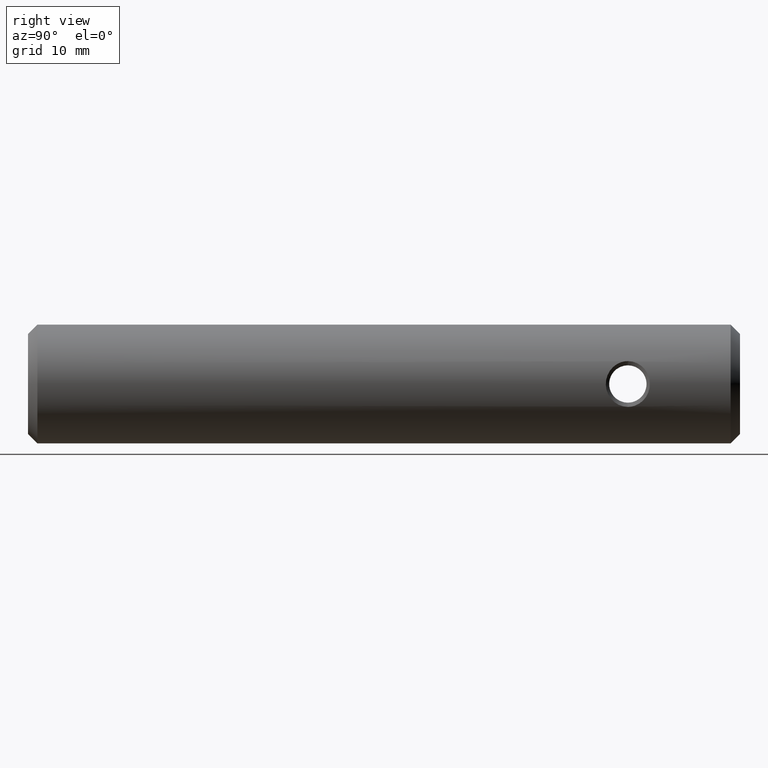
[diagram: clean part render]
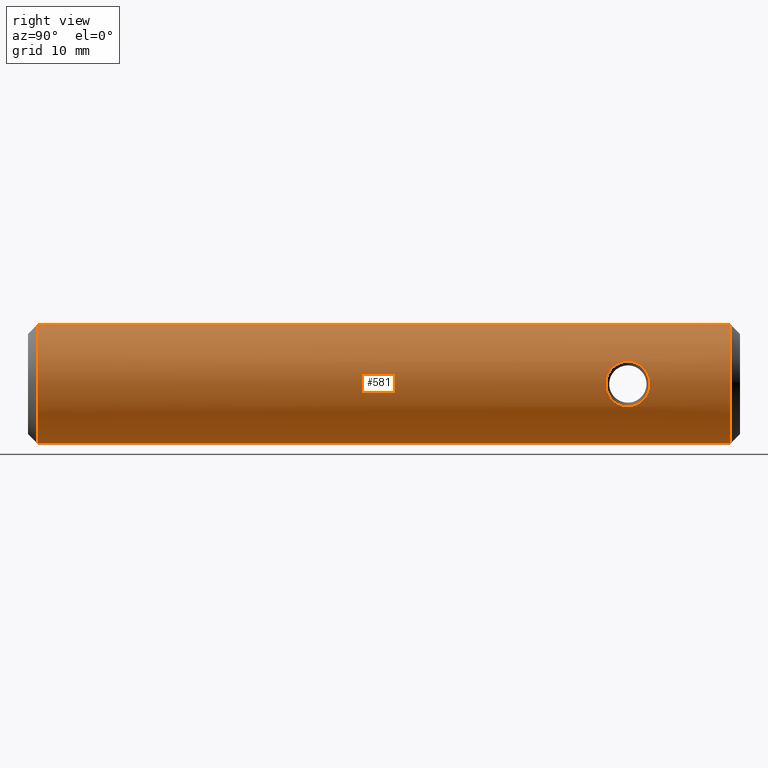
[diagram: same view with one face highlighted and labeled with its STEP entity id]
A machine part, right view. The second image highlights one B-rep face of the part: STEP entity #581.
In plain terms, the highlighted cylindrical surface (partial cylindrical patch) has radius 6.35 mm, axis along (-0, -1, -0).
Its self-contained STEP definition (entity closure, byte-faithful):
#2 = CARTESIAN_POINT ( 'NONE',  ( 6.326067732639769400, 66.49591761401511300, -0.5564110071997028200 ) ) ;
#14 = ORIENTED_EDGE ( 'NONE', *, *, #534, .T. ) ;
#17 = CARTESIAN_POINT ( 'NONE',  ( 6.044716325919997000, 62.76065860327219100, -1.947430056315983400 ) ) ;
#19 = CARTESIAN_POINT ( 'NONE',  ( 6.290881142674536800, 61.99714789250209900, 0.8678305087257779400 ) ) ;
#22 = AXIS2_PLACEMENT_3D ( 'NONE', #664, #599, #43 ) ;
#23 = CARTESIAN_POINT ( 'NONE',  ( 6.343903829851148800, 61.85868954769866700, 0.3198822842366769700 ) ) ;
#24 = CARTESIAN_POINT ( 'NONE',  ( 7.776507174585692200E-016, -4.972576832151299100, 6.349999999999999600 ) ) ;
#31 = CARTESIAN_POINT ( 'NONE',  ( 6.325273182238317000, 61.90436055669693600, -0.6387770456071684100 ) ) ;
#39 = VERTEX_POINT ( 'NONE', #304 ) ;
#43 = DIRECTION ( 'NONE',  ( 0.0000000000000000000, 0.0000000000000000000, -1.000000000000000000 ) ) ;
#61 = VERTEX_POINT ( 'NONE', #383 ) ;
#63 = CARTESIAN_POINT ( 'NONE',  ( 6.172050388588122200, 66.07067697859237400, 1.498839418548104200 ) ) ;
#65 = CARTESIAN_POINT ( 'NONE',  ( 6.230175866344139600, 66.23974002935835900, 1.235165687787453900 ) ) ;
#67 = CARTESIAN_POINT ( 'NONE',  ( 5.984937469672895600, 65.38463920628757400, 2.124049414043475400 ) ) ;
#78 = LINE ( 'NONE', #24, #321 ) ;
#90 = CARTESIAN_POINT ( 'NONE',  ( 6.044138595771001700, 62.76241963860174200, 1.949212999774067500 ) ) ;
#99 = CARTESIAN_POINT ( 'NONE',  ( 6.230315695396682500, 62.15913759906042200, -1.234435924944128800 ) ) ;
#109 = FACE_BOUND ( 'NONE', #409, .T. ) ;
#120 = CIRCLE ( 'NONE', #991, 6.349999999999999600 ) ;
#151 = CARTESIAN_POINT ( 'NONE',  ( 6.044502638549860600, 65.63846607084785500, -1.948086060091246900 ) ) ;
#154 = CARTESIAN_POINT ( 'NONE',  ( 6.076465001697525500, 65.75696497871148000, 1.847401799589166100 ) ) ;
#167 = CARTESIAN_POINT ( 'NONE',  ( 5.857736303906841100, 64.04578168331703100, -2.451412938292524900 ) ) ;
#172 = CARTESIAN_POINT ( 'NONE',  ( 5.910974152097070400, 63.44189568427005800, -2.320247162970356000 ) ) ;
#186 = CARTESIAN_POINT ( 'NONE',  ( 5.857731802697410100, 64.19979653972927700, 2.451423694033194200 ) ) ;
#200 = B_SPLINE_CURVE_WITH_KNOTS ( 'NONE', 3,
 ( #692, #167, #475, #775, #326, #172, #494, #233, #311, #17, #568, #949, #961, #99, #513, #31, #657, #436, #23, #591, #649, #498, #19, #729, #878, #265, #90, #797, #430, #574, #726, #273, #341, #186 ),
 .UNSPECIFIED., .F., .F.,
 ( 4, 2, 2, 2, 2, 2, 2, 2, 2, 2, 2, 2, 2, 2, 2, 2, 4 ),
 ( 0.0000000000000000000, 0.03124999999999994400, 0.04687499999999991000, 0.06249999999999987500, 0.09374999999999983300, 0.1249999999999997800, 0.1562500000000006700, 0.1875000000000015500, 0.2500000000000027800, 0.2812500000000033900, 0.2968750000000036600, 0.3125000000000040000, 0.3750000000000057200, 0.4062500000000065500, 0.4218750000000058300, 0.4375000000000051600, 0.5000000000000000000 ),
 .UNSPECIFIED. ) ;
#217 = DIRECTION ( 'NONE',  ( 0.0000000000000000000, 0.0000000000000000000, -1.000000000000000000 ) ) ;
#231 = CARTESIAN_POINT ( 'NONE',  ( 5.910710731190838500, 64.95678743270613600, 2.320917073869206400 ) ) ;
#233 = CARTESIAN_POINT ( 'NONE',  ( 5.957913749829571300, 63.14954830344996100, -2.197778127873494900 ) ) ;
#236 = CARTESIAN_POINT ( 'NONE',  ( 5.885217498726667900, 64.81009609440786800, -2.388620590641098200 ) ) ;
#254 = CARTESIAN_POINT ( 'NONE',  ( 5.985764347940089700, 65.38291553905826000, -2.120073357737773300 ) ) ;
#265 = CARTESIAN_POINT ( 'NONE',  ( 6.076037875231716800, 62.64449840458812000, 1.848843010104696400 ) ) ;
#272 = DIRECTION ( 'NONE',  ( -0.0000000000000000000, -1.000000000000000000, -0.0000000000000000000 ) ) ;
#273 = CARTESIAN_POINT ( 'NONE',  ( 5.885152614196735000, 63.58972895066170100, 2.388735818824656600 ) ) ;
#293 = EDGE_CURVE ( 'NONE', #605, #61, #120, .T. ) ;
#304 = CARTESIAN_POINT ( 'NONE',  ( 5.857731802697410100, 64.19979653972927700, 2.451423694033194200 ) ) ;
#308 = CARTESIAN_POINT ( 'NONE',  ( 6.173164539887660700, 66.08443811896792400, -1.506770858485837500 ) ) ;
#311 = CARTESIAN_POINT ( 'NONE',  ( 5.985344257398362600, 63.01415741636228100, -2.122906829212034100 ) ) ;
#314 = CARTESIAN_POINT ( 'NONE',  ( 5.857731802697410100, 64.19979653972927700, 2.451423694033194200 ) ) ;
#321 = VECTOR ( 'NONE', #569, 1000.000000000000000 ) ;
#326 = CARTESIAN_POINT ( 'NONE',  ( 5.891973010020838500, 63.59139135815847500, -2.368082847625398600 ) ) ;
#341 = CARTESIAN_POINT ( 'NONE',  ( 5.857789347046335100, 63.89207012294076500, 2.451286190523057400 ) ) ;
#348 = DIRECTION ( 'NONE',  ( 0.0000000000000000000, 0.0000000000000000000, -1.000000000000000000 ) ) ;
#357 = CARTESIAN_POINT ( 'NONE',  ( 0.0000000000000000000, 75.20000000000000300, -6.349999999999999600 ) ) ;
#381 = CARTESIAN_POINT ( 'NONE',  ( 0.0000000000000000000, 75.20000000000000300, 0.0000000000000000000 ) ) ;
#383 = CARTESIAN_POINT ( 'NONE',  ( 7.776507174585692200E-016, 0.9999999999999991100, 6.349999999999999600 ) ) ;
#392 = CARTESIAN_POINT ( 'NONE',  ( 5.857722795400151000, 64.50821098259160600, -2.451445217171566600 ) ) ;
#394 = CARTESIAN_POINT ( 'NONE',  ( 6.000034732467927500, 65.44843139739211300, -2.079476152885149500 ) ) ;
#395 = CARTESIAN_POINT ( 'NONE',  ( 6.290868831667567400, 66.40366912650502200, -0.8679082561630230300 ) ) ;
#409 = EDGE_LOOP ( 'NONE', ( #597, #620 ) ) ;
#430 = CARTESIAN_POINT ( 'NONE',  ( 5.985402657965550200, 63.01791689252345200, 2.121093560798236400 ) ) ;
#433 = EDGE_CURVE ( 'NONE', #916, #605, #539, .T. ) ;
#436 = CARTESIAN_POINT ( 'NONE',  ( 6.350020422462994100, 61.84335243396287000, 0.1603466885626418100 ) ) ;
#446 = CARTESIAN_POINT ( 'NONE',  ( 0.0000000000000000000, 0.9999999999999991100, -6.349999999999999600 ) ) ;
#469 = CARTESIAN_POINT ( 'NONE',  ( 5.958703180667967600, 65.24754188802653200, -2.194981156173696000 ) ) ;
#472 = CARTESIAN_POINT ( 'NONE',  ( 5.864346822607366500, 64.50602899906391500, 2.435796251310726700 ) ) ;
#475 = CARTESIAN_POINT ( 'NONE',  ( 5.864427155873657100, 63.89313758089885900, -2.435605030657815600 ) ) ;
#478 = CARTESIAN_POINT ( 'NONE',  ( 5.857703030522944900, 64.35365974812354800, 2.451492445788262800 ) ) ;
#491 = B_SPLINE_CURVE_WITH_KNOTS ( 'NONE', 3,
 ( #314, #478, #472, #1003, #851, #231, #766, #550, #67, #627, #154, #764, #63, #65, #926, #944, #920, #772, #700, #2, #545, #543, #395, #714, #308, #624, #151, #394, #254, #469, #849, #236, #392, #874 ),
 .UNSPECIFIED., .F., .F.,
 ( 4, 2, 2, 2, 2, 2, 2, 2, 2, 2, 2, 2, 2, 2, 2, 2, 4 ),
 ( 0.5000000000000000000, 0.5312500000000028900, 0.5468750000000028900, 0.5625000000000030000, 0.5937500000000031100, 0.6250000000000031100, 0.6562500000000032200, 0.6875000000000033300, 0.7500000000000024400, 0.7812500000000021100, 0.7968750000000015500, 0.8125000000000011100, 0.8749999999999993300, 0.9062499999999984500, 0.9218749999999991100, 0.9374999999999997800, 1.000000000000000000 ),
 .UNSPECIFIED. ) ;
#494 = CARTESIAN_POINT ( 'NONE',  ( 5.922237682966808400, 63.36559685489547200, -2.291444318304460400 ) ) ;
#498 = CARTESIAN_POINT ( 'NONE',  ( 6.301194943160777700, 61.96987737686289000, 0.7896522132680027200 ) ) ;
#503 = FACE_OUTER_BOUND ( 'NONE', #690, .T. ) ;
#513 = CARTESIAN_POINT ( 'NONE',  ( 6.256756285345208100, 62.08740258093235600, -1.095059369065301400 ) ) ;
#523 = AXIS2_PLACEMENT_3D ( 'NONE', #381, #838, #217 ) ;
#534 = EDGE_CURVE ( 'NONE', #846, #61, #78, .T. ) ;
#539 = LINE ( 'NONE', #558, #709 ) ;
#543 = CARTESIAN_POINT ( 'NONE',  ( 6.301180624178120300, 66.43091242252872100, -0.7897595285115277500 ) ) ;
#545 = CARTESIAN_POINT ( 'NONE',  ( 6.318695583624382600, 66.47681111085948700, -0.6345734731914759500 ) ) ;
#550 = CARTESIAN_POINT ( 'NONE',  ( 5.957534707361975100, 65.24919250591125300, 2.198800742802716500 ) ) ;
#558 = CARTESIAN_POINT ( 'NONE',  ( 0.0000000000000000000, -4.972576832151299100, -6.349999999999999600 ) ) ;
#568 = CARTESIAN_POINT ( 'NONE',  ( 6.076930254404205200, 62.64163319282189900, -1.845862912775467800 ) ) ;
#569 = DIRECTION ( 'NONE',  ( -0.0000000000000000000, -1.000000000000000000, -0.0000000000000000000 ) ) ;
#574 = CARTESIAN_POINT ( 'NONE',  ( 5.958354783399845400, 63.15330904733212900, 2.195926033994992600 ) ) ;
#575 = DIRECTION ( 'NONE',  ( -0.0000000000000000000, -1.000000000000000000, -0.0000000000000000000 ) ) ;
#581 = ADVANCED_FACE ( 'NONE', ( #109, #503 ), #917, .T. ) ;
#591 = CARTESIAN_POINT ( 'NONE',  ( 6.326095761330482700, 61.90469868464005300, 0.5561002949276810900 ) ) ;
#597 = ORIENTED_EDGE ( 'NONE', *, *, #723, .T. ) ;
#599 = DIRECTION ( 'NONE',  ( -0.0000000000000000000, -1.000000000000000000, -0.0000000000000000000 ) ) ;
#605 = VERTEX_POINT ( 'NONE', #446 ) ;
#609 = ORIENTED_EDGE ( 'NONE', *, *, #982, .T. ) ;
#620 = ORIENTED_EDGE ( 'NONE', *, *, #707, .T. ) ;
#624 = CARTESIAN_POINT ( 'NONE',  ( 6.076388041683955500, 65.75647198442376900, -1.847691284010230600 ) ) ;
#627 = CARTESIAN_POINT ( 'NONE',  ( 6.044287175412517100, 65.63813759726717500, 1.948757288719350300 ) ) ;
#649 = CARTESIAN_POINT ( 'NONE',  ( 6.318721271227584400, 61.92386897467680000, 0.6343262773763311800 ) ) ;
#657 = CARTESIAN_POINT ( 'NONE',  ( 6.349959001336809000, 61.84334802543108400, -0.3231135810550949100 ) ) ;
#664 = CARTESIAN_POINT ( 'NONE',  ( 0.0000000000000000000, -4.972576832151299100, 0.0000000000000000000 ) ) ;
#690 = EDGE_LOOP ( 'NONE', ( #609, #14, #866, #902 ) ) ;
#692 = CARTESIAN_POINT ( 'NONE',  ( 5.857731798874040900, 64.20000000000010200, -2.451423703169228800 ) ) ;
#700 = CARTESIAN_POINT ( 'NONE',  ( 6.343876715534529300, 66.54170860045277900, -0.3203636771157019600 ) ) ;
#707 = EDGE_CURVE ( 'NONE', #39, #778, #491, .T. ) ;
#709 = VECTOR ( 'NONE', #575, 1000.000000000000000 ) ;
#714 = CARTESIAN_POINT ( 'NONE',  ( 6.234331186410844200, 66.25274954982364800, -1.244323523824721000 ) ) ;
#722 = CIRCLE ( 'NONE', #523, 6.349999999999999600 ) ;
#723 = EDGE_CURVE ( 'NONE', #778, #39, #200, .T. ) ;
#726 = CARTESIAN_POINT ( 'NONE',  ( 5.945830538154689600, 63.22163375913325500, 2.229520232713710000 ) ) ;
#729 = CARTESIAN_POINT ( 'NONE',  ( 6.234243196445708800, 62.14834599108079500, 1.244892468329564400 ) ) ;
#732 = CARTESIAN_POINT ( 'NONE',  ( 0.0000000000000000000, 0.9999999999999991100, 0.0000000000000000000 ) ) ;
#764 = CARTESIAN_POINT ( 'NONE',  ( 6.140680895073662000, 65.97412196846301000, 1.621221289910034200 ) ) ;
#766 = CARTESIAN_POINT ( 'NONE',  ( 5.921926655674656800, 65.03297619801696800, 2.292246890891783000 ) ) ;
#772 = CARTESIAN_POINT ( 'NONE',  ( 6.350004523093860000, 66.55686456070556300, -0.1609153234184669300 ) ) ;
#775 = CARTESIAN_POINT ( 'NONE',  ( 5.883914223268209100, 63.66653274866889900, -2.387958928918284300 ) ) ;
#778 = VERTEX_POINT ( 'NONE', #813 ) ;
#797 = CARTESIAN_POINT ( 'NONE',  ( 5.999669967099037200, 62.95240468021848600, 2.080527807248454800 ) ) ;
#813 = CARTESIAN_POINT ( 'NONE',  ( 5.857731798874040900, 64.20000000000010200, -2.451423703169228800 ) ) ;
#824 = CARTESIAN_POINT ( 'NONE',  ( 7.776507174585692200E-016, 75.20000000000000300, 6.349999999999999600 ) ) ;
#838 = DIRECTION ( 'NONE',  ( -0.0000000000000000000, -1.000000000000000000, -0.0000000000000000000 ) ) ;
#846 = VERTEX_POINT ( 'NONE', #824 ) ;
#849 = CARTESIAN_POINT ( 'NONE',  ( 5.946219639588765200, 65.17954514570914200, -2.228485266072771400 ) ) ;
#851 = CARTESIAN_POINT ( 'NONE',  ( 5.891775500953005300, 64.80740609667350300, 2.368573169222792700 ) ) ;
#866 = ORIENTED_EDGE ( 'NONE', *, *, #293, .F. ) ;
#874 = CARTESIAN_POINT ( 'NONE',  ( 5.857731798874040900, 64.20000000000010200, -2.451423703169228800 ) ) ;
#878 = CARTESIAN_POINT ( 'NONE',  ( 6.172885549556196900, 62.31694108373974200, 1.507916092205924000 ) ) ;
#902 = ORIENTED_EDGE ( 'NONE', *, *, #433, .F. ) ;
#916 = VERTEX_POINT ( 'NONE', #357 ) ;
#917 = CYLINDRICAL_SURFACE ( 'NONE', #22, 6.349999999999999600 ) ;
#920 = CARTESIAN_POINT ( 'NONE',  ( 6.349990946295007700, 66.55621834934696300, 0.3223658177675010600 ) ) ;
#926 = CARTESIAN_POINT ( 'NONE',  ( 6.256704865848914400, 66.31164307636406400, 1.095377010964660600 ) ) ;
#944 = CARTESIAN_POINT ( 'NONE',  ( 6.325308435115103700, 66.49491172492747600, 0.6385918090698634600 ) ) ;
#949 = CARTESIAN_POINT ( 'NONE',  ( 6.141025679513100900, 62.42453527079811700, -1.619905803808910900 ) ) ;
#961 = CARTESIAN_POINT ( 'NONE',  ( 6.172325782787828200, 62.32803615204579700, -1.497684929560130900 ) ) ;
#982 = EDGE_CURVE ( 'NONE', #916, #846, #722, .T. ) ;
#991 = AXIS2_PLACEMENT_3D ( 'NONE', #732, #272, #348 ) ;
#1003 = CARTESIAN_POINT ( 'NONE',  ( 5.883747896472508300, 64.73234193929370400, 2.388368156123859900 ) ) ;